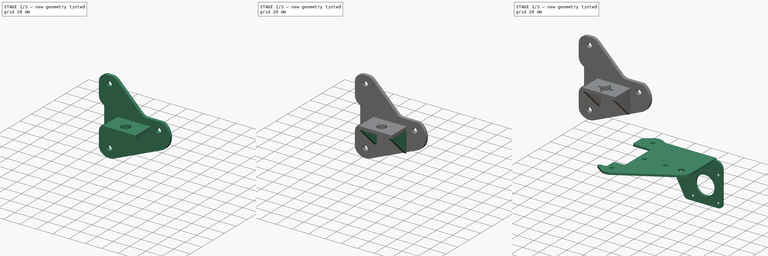
[diagram: build sequence overview — one tinted view per stage of 3, left to right]
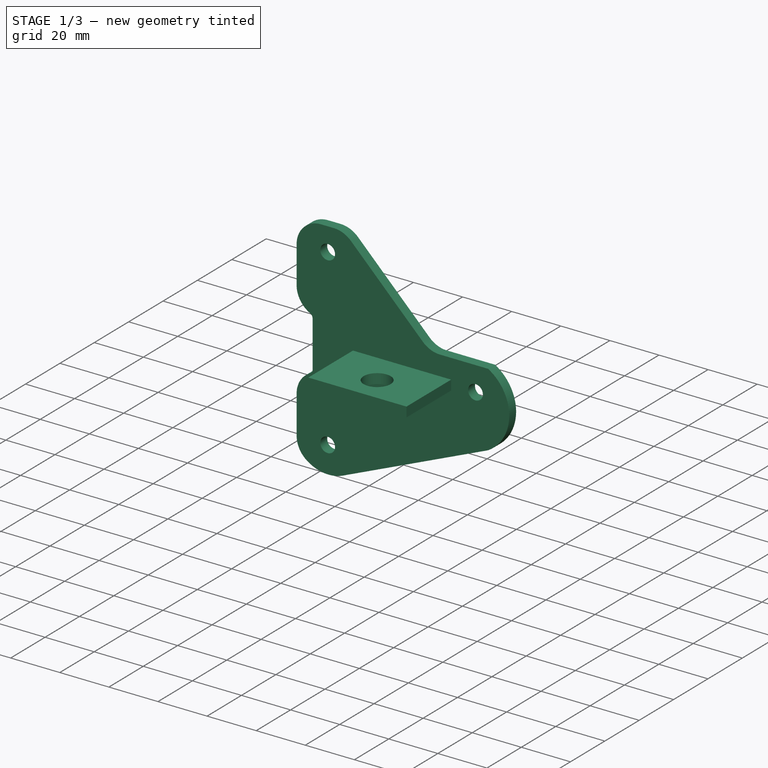
[diagram: stage 1 of 3 — iso view after this stage's code; geometry added in this stage tinted green]
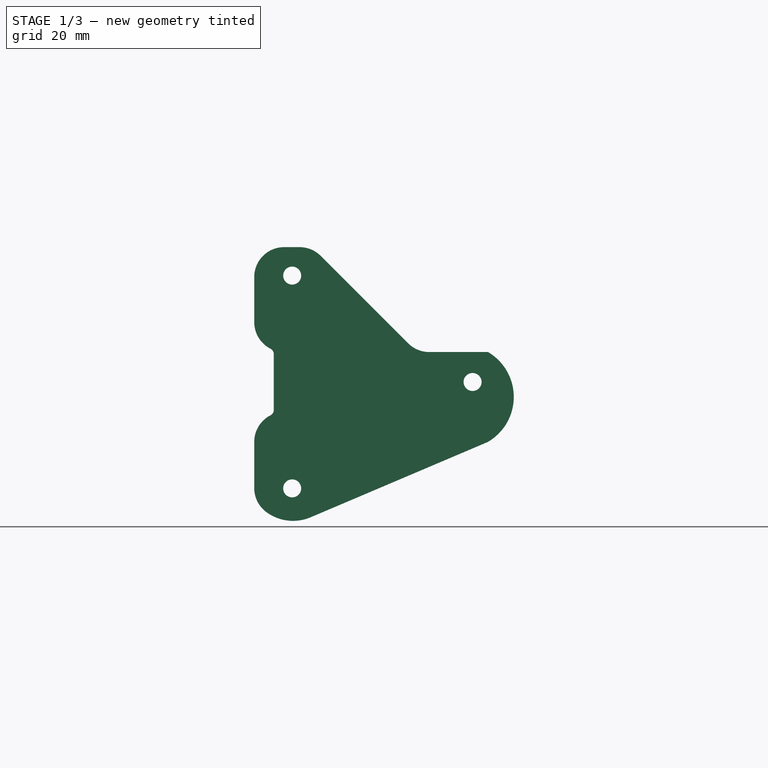
[diagram: stage 1 of 3 — front view after this stage's code; geometry added in this stage tinted green]
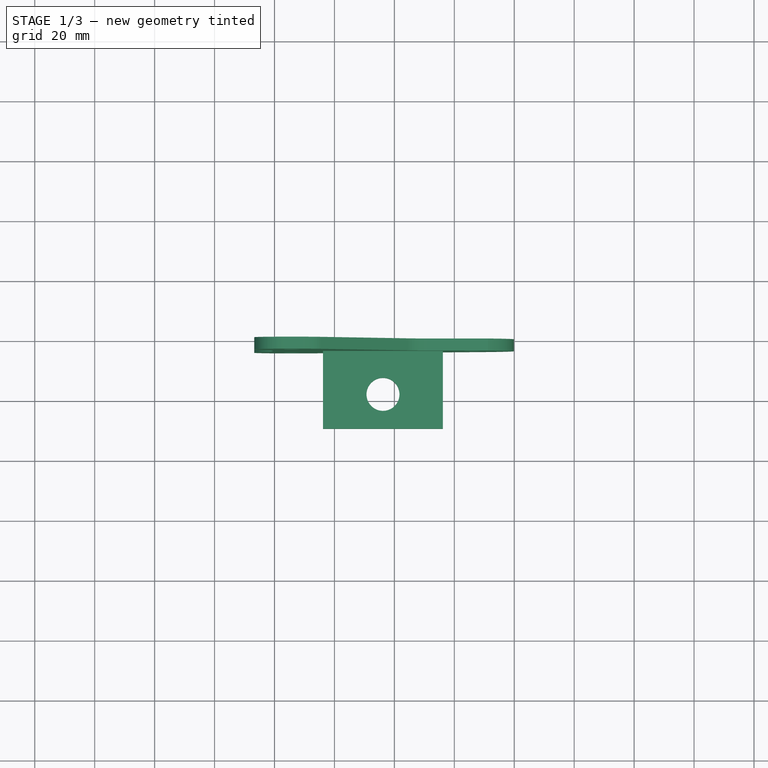
[diagram: stage 1 of 3 — top view after this stage's code; geometry added in this stage tinted green]
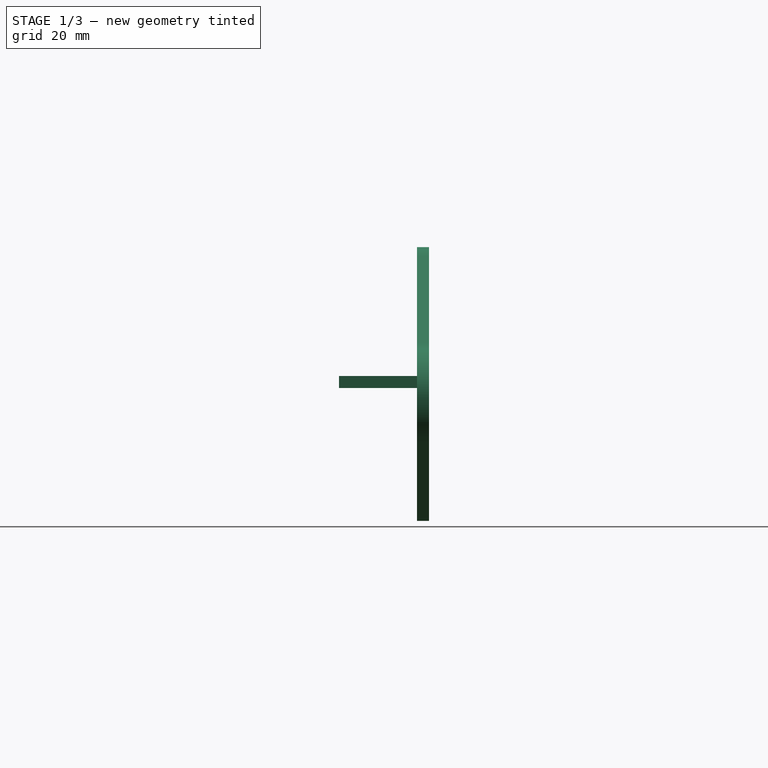
[diagram: stage 1 of 3 — right view after this stage's code; geometry added in this stage tinted green]
FCSTD DOCUMENT  (FreeCAD 0.20R25645 (Git))
Label: gantry bracket
License: Creative Commons Attribution
LicenseURL: http://creativecommons.org/licenses/by/4.0/
objects: Sketcher::SketchObject×7, PartDesign::Pad×4, PartDesign::Point×3, PartDesign::Pocket×3, Part::Feature×2, PartDesign::Body×2, PartDesign::SubShapeBinder×1, PartDesign::FeatureBase×1
note: 30 computed .brp shape members not serialized (recipe doc carries the construction recipe); baked Part::Feature solids carry a one-line shape summary decoded from their .brp

FEATURE [Part::Feature] Part__Feature  label="Z Stent"
  Placement = pos=(176,94,0) rot=(0,0,1;3.14159rad)
  shape: bbox 106.4 x 3 x 91.34 mm, 32 faces (baked)
FEATURE [PartDesign::SubShapeBinder] Binder
  BindMode = 0
  ClaimChildren = false
  Context = -> Body [Binder.]
  Fuse = false
  MakeFace = true
  PartialLoad = false
  Relative = true
  Support = -> [Part__Feature]
  _Version = 2
FEATURE [Sketcher::SketchObject] Sketch
  ExternalGeometry = -> [Binder]
  FullyConstrained = false
  MapMode = 5
  Placement = pos=(0,0,0) rot=(1,0,0;1.5708rad)
  Support = -> [XZ_Plane]
  sketch-geometry (20):
    g0: LineSegment StartX=4.57833 StartY=59.806 StartZ=0 EndX=-24.5638 EndY=88.9481 EndZ=0
    g1: LineSegment StartX=-31.6349 StartY=91.8771 StartZ=0 EndX=-36.7642 EndY=91.8771 EndZ=0
    g2: LineSegment StartX=-46.7642 StartY=81.8771 StartZ=0 EndX=-46.7642 EndY=66.8771 EndZ=0
    g3: ArcOfCircle CenterX=-36.7642 CenterY=81.8771 CenterZ=0 NormalX=0 NormalY=0 NormalZ=1 AngleXU=0 Radius=10 StartAngle=1.5708 EndAngle=3.14159
    g4: ArcOfCircle CenterX=-31.6349 CenterY=81.8771 CenterZ=0 NormalX=0 NormalY=0 NormalZ=1 AngleXU=0 Radius=10 StartAngle=0.785398 EndAngle=1.5708
    g5: ArcOfCircle CenterX=-36.7642 CenterY=66.8771 CenterZ=0 NormalX=0 NormalY=0 NormalZ=1 AngleXU=0 Radius=10 StartAngle=3.14159 EndAngle=4.23893
    g6: ArcOfCircle CenterX=-42.2358 CenterY=56.1971 CenterZ=0 NormalX=0 NormalY=0 NormalZ=1 AngleXU=0 Radius=2 StartAngle=1e-16 EndAngle=1.09734
    g7: LineSegment StartX=-40.2358 StartY=56.1971 StartZ=0 EndX=-40.2358 EndY=37.557 EndZ=0
    g8: ArcOfCircle CenterX=-42.2358 CenterY=37.557 CenterZ=0 NormalX=0 NormalY=0 NormalZ=1 AngleXU=0 Radius=2 StartAngle=5.18585 EndAngle=6.28319
    g9: ArcOfCircle CenterX=-36.7642 CenterY=26.8771 CenterZ=0 NormalX=0 NormalY=0 NormalZ=1 AngleXU=0 Radius=10 StartAngle=2.04426 EndAngle=3.14159
    g10: LineSegment StartX=-46.7642 StartY=26.8771 StartZ=0 EndX=-46.7642 EndY=11.4982 EndZ=0
    g11: ArcOfCircle CenterX=-36.7642 CenterY=11.4982 CenterZ=0 NormalX=0 NormalY=0 NormalZ=1 AngleXU=0 Radius=10 StartAngle=3.14159 EndAngle=4.09885
    g12: ArcOfCircle CenterX=-33.8134 CenterY=15.5353 CenterZ=0 NormalX=0 NormalY=0 NormalZ=1 AngleXU=0 Radius=15 StartAngle=4.09297 EndAngle=5.1143
    g13: LineSegment StartX=-27.9457 StartY=1.73058 StartZ=0 EndX=31.1589 EndY=26.853 EndZ=0
    g14: LineSegment StartX=11.6494 StartY=56.8771 StartZ=0 EndX=31.2384 EndY=56.8771 EndZ=0
    g15: ArcOfCircle CenterX=11.6494 CenterY=66.8771 CenterZ=0 NormalX=0 NormalY=0 NormalZ=1 AngleXU=0 Radius=10 StartAngle=3.92699 EndAngle=4.71239
    g16: ArcOfCircle CenterX=22.4894 CenterY=41.8881 CenterZ=0 NormalX=0 NormalY=0 NormalZ=1 AngleXU=0 Radius=17.3555 StartAngle=5.23544 EndAngle=7.32564
    g17: Circle CenterX=-34.1 CenterY=11.3771 CenterZ=0 NormalX=0 NormalY=0 NormalZ=1 AngleXU=0 Radius=3
    g18: Circle CenterX=-34.1 CenterY=82.3771 CenterZ=0 NormalX=0 NormalY=0 NormalZ=1 AngleXU=0 Radius=3
    g19: Circle CenterX=26.1 CenterY=46.8771 CenterZ=0 NormalX=0 NormalY=0 NormalZ=1 AngleXU=0 Radius=3
  constraints (44):
    c: Coincident(g0,g-14)
    c: Coincident(g0,g-15)
    c: Coincident(g1,g-17)
    c: Coincident(g1,g-18)
    c: Coincident(g2,g-18)
    c: Coincident(g2,g-19)
    c: Coincident(g3,g-18)
    c: Coincident(g3,g2)
    c: Coincident(g4,g-15)
    c: Coincident(g4,g1)
    c: Coincident(g5,g-19)
    c: Coincident(g5,g2)
    c: Coincident(g6,g-20)
    c: Coincident(g6,g5)
    c: Coincident(g6,g-20)
    c: Coincident(g7,g6)
    c: Coincident(g7,g-8)
    c: Coincident(g8,g-8)
    c: Coincident(g8,g7)
    c: Coincident(g9,g-7)
    c: Coincident(g9,g8)
    c: Coincident(g9,g-9)
    c: Coincident(g10,g9)
    c: Coincident(g10,g-10)
    c: Coincident(g11,g-10)
    c: Coincident(g11,g10)
    c: Coincident(g12,g-21)
    c: Coincident(g12,g11)
    c: Coincident(g12,g-21)
    c: Coincident(g13,g12)
    c: PointOnObject(g13,g-11)
    c: Coincident(g14,g-13)
    c: PointOnObject(g14,g-12)
    c: Coincident(g15,g-13)
    c: Coincident(g15,g0)
    c: Coincident(g15,g14)
    c: Coincident(g16,g14)
    c: Coincident(g16,g13)
    c: Coincident(g17,g-22)
    c: Coincident(g18,g-4)
    c: Coincident(g19,g-3)
    c: Equal(g19,g17)
    c: Radius(g18) = 3
    c: Equal(g17,g18)
FEATURE [PartDesign::Pad] Pad
  Direction = (0,-1,-2e-16)
  Length = 4
  Length2 = 100
  Placement = pos=(0,0,0) rot=(1,0,0;1.5708rad)
  Profile = -> Sketch
  Type = 0
FEATURE [PartDesign::Point] DatumPoint002
  AttacherType = Attacher::AttachEnginePoint
  MapMode = 37
  Placement = pos=(45.7,43.5264,-44.05) rot=(0,0,1;0rad)
  Support = -> [BaseFeature]
FEATURE [PartDesign::Point] DatumPoint
  AttacherType = Attacher::AttachEnginePoint
  MapMode = 36
  Placement = pos=(15.4,35.5,-26.9) rot=(-1,0,0;1.5708rad)
  Support = -> [BaseFeature]
FEATURE [PartDesign::Point] DatumPoint003
  AttacherType = Attacher::AttachEnginePoint
  MapMode = 36
  Placement = pos=(75.6,0,-26.9) rot=(0,0.707107,0.707107;3.14159rad)
  Support = -> [BaseFeature]
FEATURE [PartDesign::Body] Body001
  BaseFeature = -> Part__Feature001
  Group = -> [BaseFeature,DatumPoint002,DatumPoint,DatumPoint003]
  Origin = -> Origin001
  Tip = -> BaseFeature
FEATURE [Sketcher::SketchObject] Sketch001
  ExternalGeometry = -> [Pad]
  FullyConstrained = false
  MapMode = 5
  Placement = pos=(0,-4,0) rot=(1,0,0;1.5708rad)
  Support = -> [Pad]
  sketch-geometry (11):
    g0: LineSegment StartX=-3.8 StartY=82.3771 StartZ=0 EndX=-3.8 EndY=46.8771 EndZ=0
    g1: LineSegment StartX=26.1 StartY=46.8771 StartZ=0 EndX=-3.8 EndY=46.8771 EndZ=0
    g2: LineSegment StartX=-34.1 StartY=82.3771 StartZ=0 EndX=-3.8 EndY=82.3771 EndZ=0
    g3: LineSegment StartX=-23.8 StartY=48.8771 StartZ=0 EndX=16.2 EndY=48.8771 EndZ=0
    g4: LineSegment StartX=16.2 StartY=48.8771 StartZ=0 EndX=16.2 EndY=44.8771 EndZ=0
    g5: LineSegment StartX=16.2 StartY=44.8771 StartZ=0 EndX=-23.8 EndY=44.8771 EndZ=0
    g6: LineSegment StartX=-23.8 StartY=44.8771 StartZ=0 EndX=-23.8 EndY=48.8771 EndZ=0
    g7: LineSegment StartX=-3.8 StartY=48.1132 StartZ=0 EndX=-23.8 EndY=48.1132 EndZ=0
    g8: LineSegment StartX=-3.8 StartY=48.1132 StartZ=0 EndX=16.2 EndY=48.1132 EndZ=0
    g9: LineSegment StartX=3.18347 StartY=46.8771 StartZ=0 EndX=3.18347 EndY=48.8771 EndZ=0
    g10: LineSegment StartX=3.18347 StartY=46.8771 StartZ=0 EndX=3.18347 EndY=44.8771 EndZ=0
  constraints (32):
    c: Vertical(g0)
    c: Coincident(g1,g-3)
    c: Horizontal(g1)
    c: Coincident(g2,g-4)
    c: Horizontal(g2)
    c: Coincident(g0,g2)
    c: Coincident(g0,g1)
    c: Distance(g2) = 30.3
    c: Coincident(g3,g4)
    c: Coincident(g4,g5)
    c: Coincident(g5,g6)
    c: Coincident(g6,g3)
    c: Horizontal(g3)
    c: Horizontal(g5)
    c: Vertical(g4)
    c: Vertical(g6)
    c: Distance(g4) = 4
    c: PointOnObject(g7,g0)
    c: PointOnObject(g7,g6)
    c: Horizontal(g7)
    c: Coincident(g8,g7)
    c: PointOnObject(g8,g4)
    c: Horizontal(g8)
    c: Equal(g8,g7)
    c: Distance(g7) = 20
    c: PointOnObject(g9,g1)
    c: PointOnObject(g9,g3)
    c: Vertical(g9)
    c: Coincident(g10,g9)
    c: PointOnObject(g10,g5)
    c: Vertical(g10)
    c: Equal(g10,g9)
FEATURE [PartDesign::Pad] Pad001
  BaseFeature = -> Pad
  Direction = (0,-1,2e-16)
  Length = 26
  Length2 = 100
  Placement = pos=(0,0,0) rot=(1,0,0;1.5708rad)
  Profile = -> Sketch001
  Type = 0
FEATURE [Sketcher::SketchObject] Sketch002
  ExternalGeometry = -> [Pad001]
  FullyConstrained = true
  MapMode = 5
  Placement = pos=(0,1.63e-14,48.8771) rot=(0,0,1;3.14159rad)
  Support = -> [Pad001]
  sketch-geometry (7):
    g0: Circle CenterX=3.8 CenterY=18.5 CenterZ=0 NormalX=0 NormalY=0 NormalZ=1 AngleXU=0 Radius=5.5
    g1: LineSegment StartX=3.8 StartY=18.5 StartZ=0 EndX=23.8 EndY=18.5 EndZ=0
    g2: LineSegment StartX=3.8 StartY=18.5 StartZ=0 EndX=-16.2 EndY=18.5 EndZ=0
    g3: Circle CenterX=3.8 CenterY=18.5 CenterZ=0 NormalX=0 NormalY=0 NormalZ=1 AngleXU=0 Radius=5
    g4: LineSegment StartX=3.8 StartY=13.5 StartZ=0 EndX=3.8 EndY=4 EndZ=0
    g5: LineSegment StartX=3.8 StartY=4 StartZ=0 EndX=-16.2 EndY=4 EndZ=0
    g6: LineSegment StartX=3.8 StartY=4 StartZ=0 EndX=23.8 EndY=4 EndZ=0
  constraints (19):
    c: Radius(g0) = 5.5
    c: Coincident(g1,g0)
    c: PointOnObject(g1,g-4)
    c: Horizontal(g1)
    c: Coincident(g2,g0)
    c: PointOnObject(g2,g-5)
    c: Horizontal(g2)
    c: Equal(g2,g1)
    c: Radius(g3) = 5
    c: PointOnObject(g4,g3)
    c: Vertical(g4)
    c: PointOnObject(g4,g-6)
    c: Distance(g4) = 9.5
    c: Coincident(g0,g3)
    c: Coincident(g5,g4)
    c: Coincident(g5,g-6)
    c: Coincident(g6,g4)
    c: Coincident(g6,g-6)
    c: Equal(g5,g6)
FEATURE [PartDesign::Pocket] Pocket
  BaseFeature = -> Pad001
  Length = 5
  Length2 = 100
  Placement = pos=(0,0,0) rot=(1,0,0;1.5708rad)
  Profile = -> Sketch002
  Type = 0
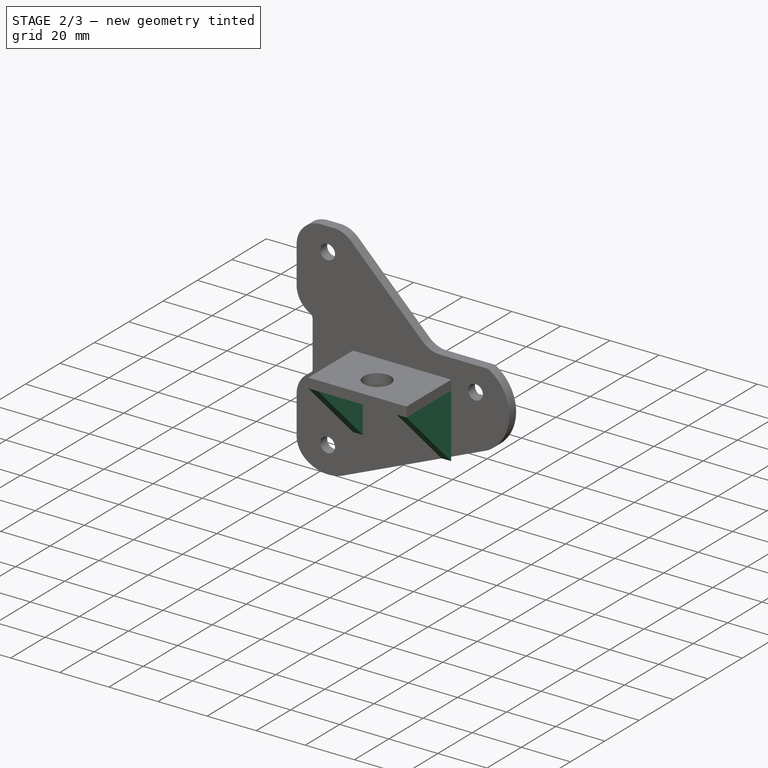
[diagram: stage 2 of 3 — iso view after this stage's code; geometry added in this stage tinted green]
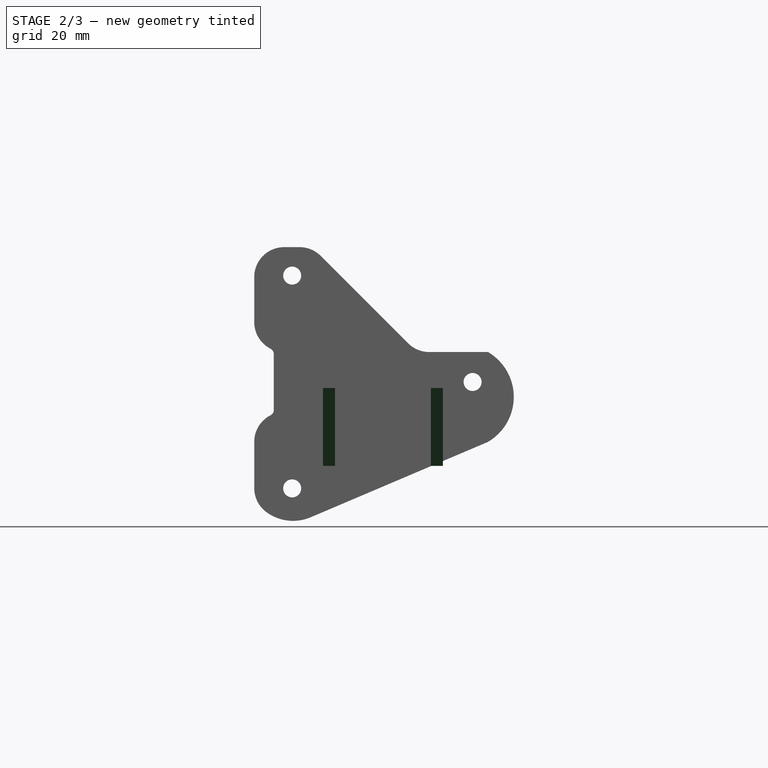
[diagram: stage 2 of 3 — front view after this stage's code; geometry added in this stage tinted green]
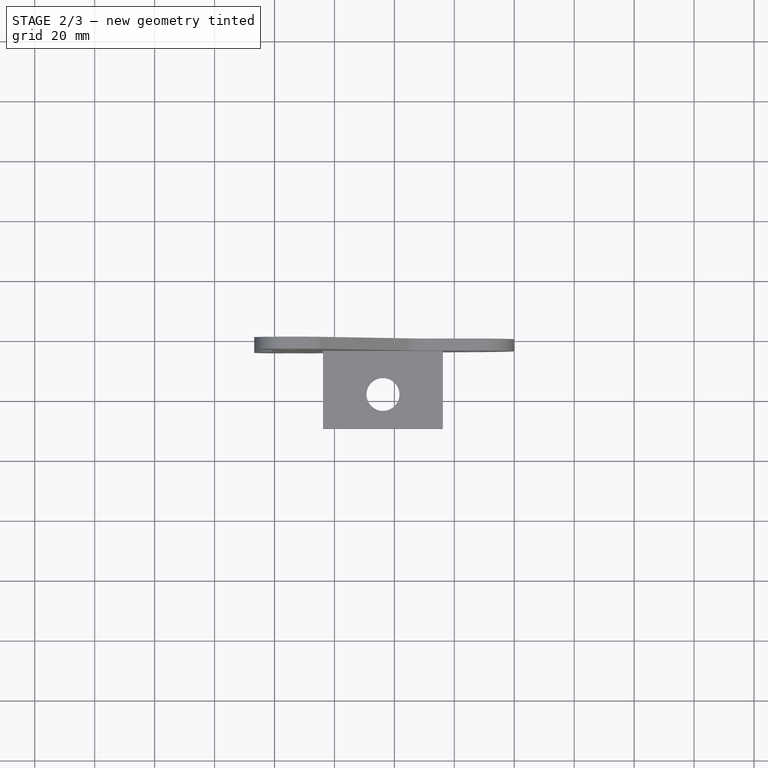
[diagram: stage 2 of 3 — top view after this stage's code; geometry added in this stage tinted green]
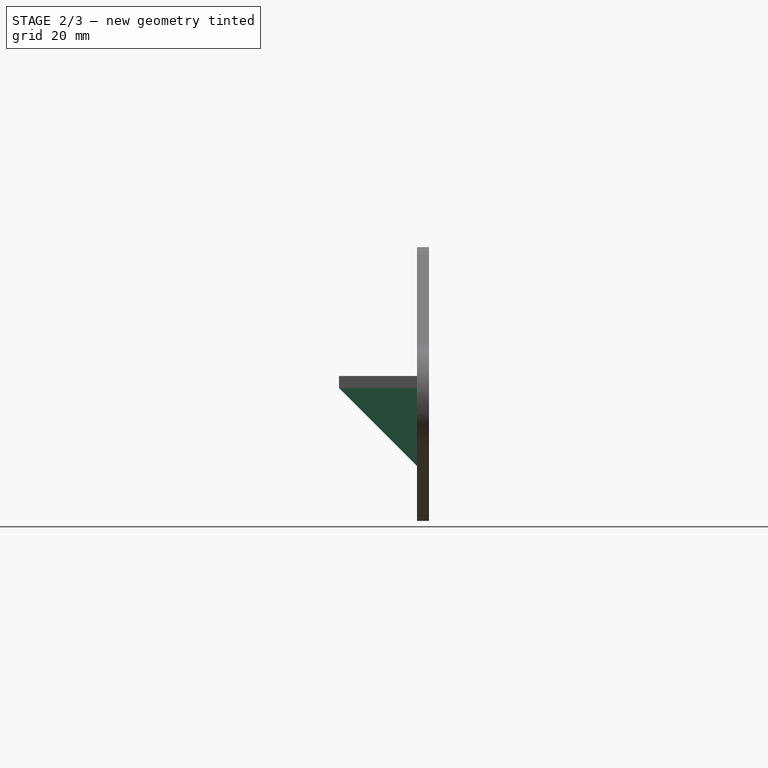
[diagram: stage 2 of 3 — right view after this stage's code; geometry added in this stage tinted green]
FEATURE [Sketcher::SketchObject] Sketch003
  ExternalGeometry = -> [Pocket]
  FullyConstrained = true
  MapMode = 5
  Placement = pos=(-23.8,0,0) rot=(0.707107,0,-0.707107;3.14159rad)
  Support = -> [Pocket]
  sketch-geometry (3):
    g0: LineSegment StartX=-44.8771 StartY=4 StartZ=0 EndX=-44.8771 EndY=30 EndZ=0
    g1: LineSegment StartX=-44.8771 StartY=30 StartZ=0 EndX=-18.8771 EndY=4 EndZ=0
    g2: LineSegment StartX=-18.8771 StartY=4 StartZ=0 EndX=-44.8771 EndY=4 EndZ=0
  constraints (7):
    c: Coincident(g0,g-3)
    c: Coincident(g0,g-3)
    c: Coincident(g1,g0)
    c: PointOnObject(g1,g-6)
    c: Coincident(g2,g0)
    c: Angle(g1,g2) = 0.785398
    c: Coincident(g2,g1)
FEATURE [PartDesign::Pad] Pad002
  BaseFeature = -> Pocket
  Direction = (-1,0,-2e-16)
  Length = 4
  Length2 = 100
  Placement = pos=(0,0,0) rot=(1,0,0;1.5708rad)
  Profile = -> Sketch003
  Reversed = true
  Type = 0
FEATURE [Sketcher::SketchObject] Sketch004
  ExternalGeometry = -> [Pad002]
  FullyConstrained = true
  MapMode = 5
  Placement = pos=(16.2,0,0) rot=(0.707107,0,0.707107;3.14159rad)
  Support = -> [Pad002]
  sketch-geometry (3):
    g0: LineSegment StartX=44.8771 StartY=4 StartZ=0 EndX=18.8771 EndY=4 EndZ=0
    g1: LineSegment StartX=18.8771 StartY=4 StartZ=0 EndX=44.8771 EndY=30 EndZ=0
    g2: LineSegment StartX=44.8771 StartY=30 StartZ=0 EndX=44.8771 EndY=4 EndZ=0
  constraints (6):
    c: Coincident(g0,g-4)
    c: Coincident(g0,g-3)
    c: Coincident(g1,g0)
    c: Coincident(g1,g-4)
    c: Coincident(g2,g1)
    c: Coincident(g2,g0)
FEATURE [PartDesign::Pad] Pad003
  BaseFeature = -> Pad002
  Direction = (1,0,-2e-16)
  Length = 4
  Length2 = 100
  Placement = pos=(0,0,0) rot=(1,0,0;1.5708rad)
  Profile = -> Sketch004
  Reversed = true
  Type = 0
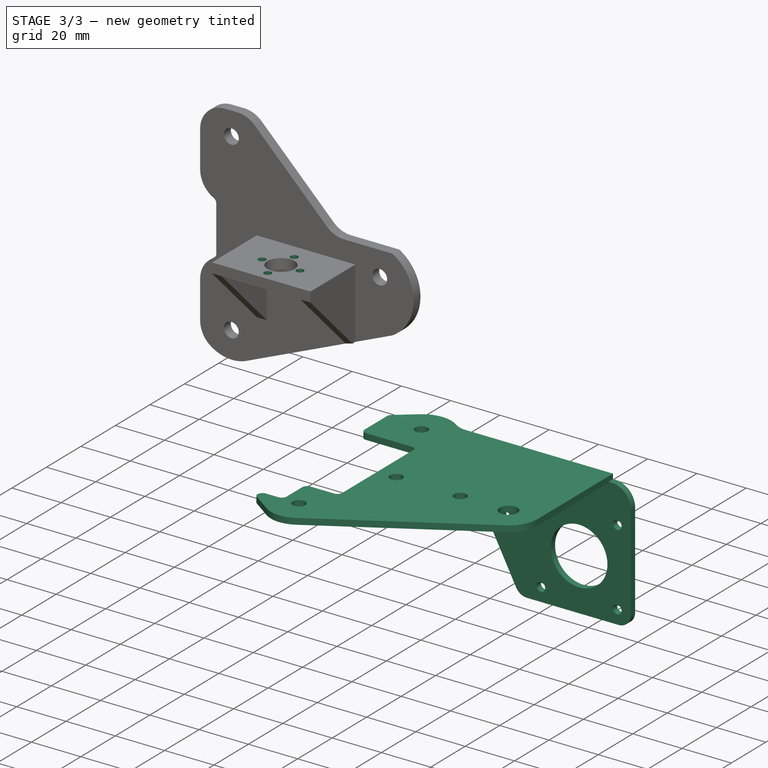
[diagram: stage 3 of 3 — iso view after this stage's code; geometry added in this stage tinted green]
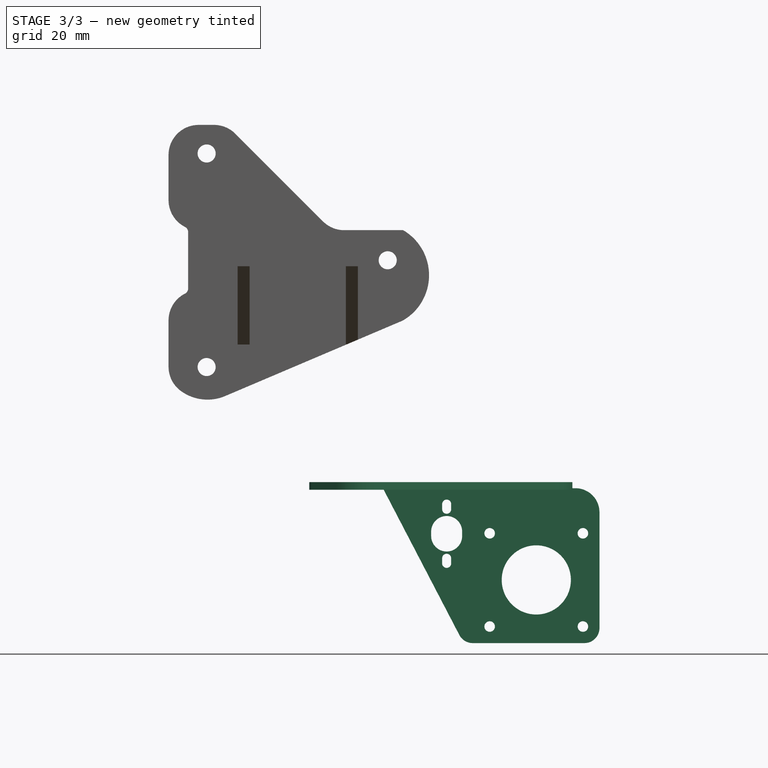
[diagram: stage 3 of 3 — front view after this stage's code; geometry added in this stage tinted green]
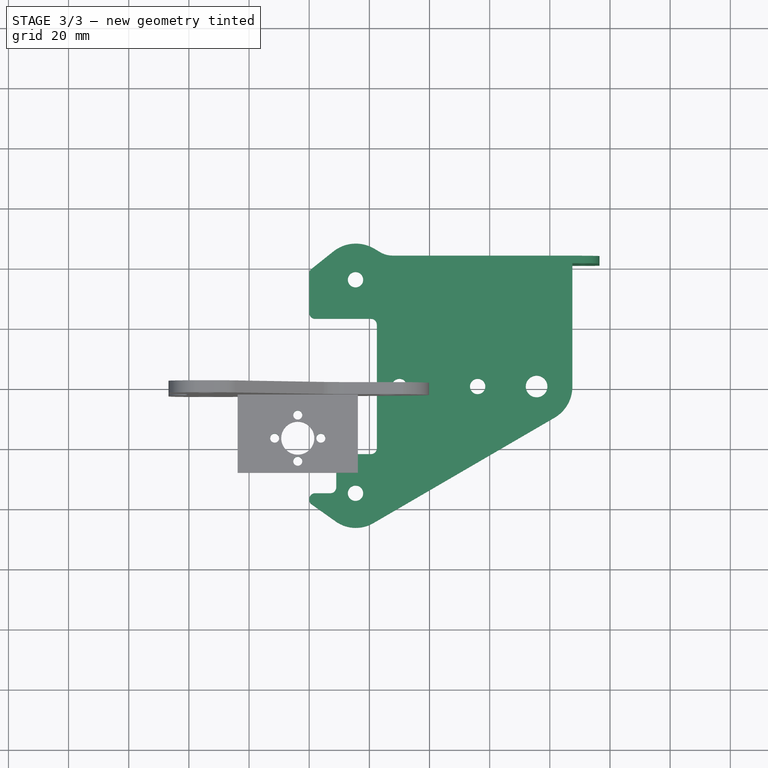
[diagram: stage 3 of 3 — top view after this stage's code; geometry added in this stage tinted green]
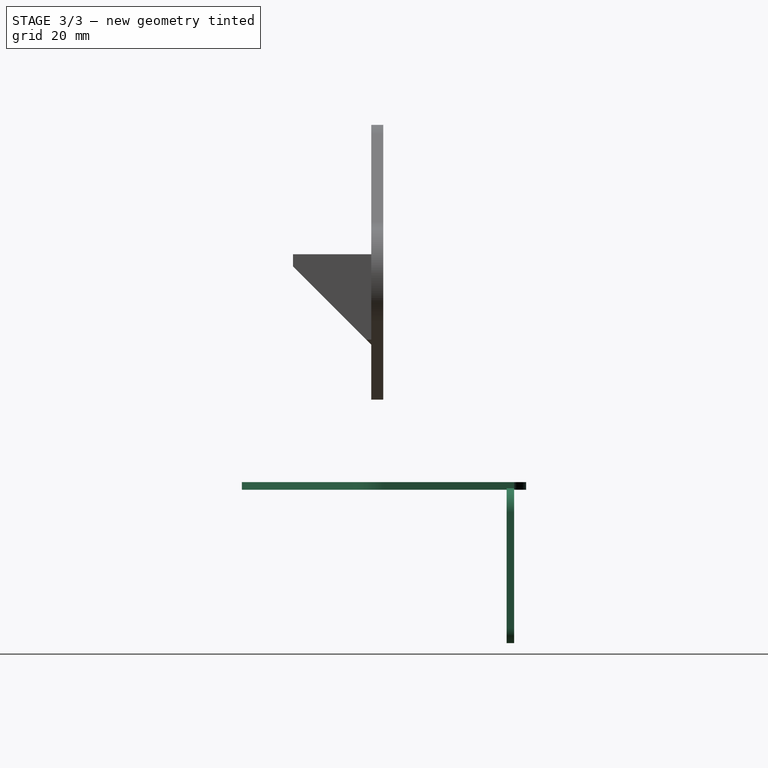
[diagram: stage 3 of 3 — right view after this stage's code; geometry added in this stage tinted green]
FEATURE [Part::Feature] Part__Feature001  label="E motor bracket"
  shape: bbox 96.5 x 94.5 x 53.5 mm, 70 faces (baked)
FEATURE [PartDesign::FeatureBase] BaseFeature
  BaseFeature = -> Part__Feature001
FEATURE [Sketcher::SketchObject] Sketch005
  ExternalGeometry = -> [Pad003]
  FullyConstrained = true
  MapMode = 5
  Placement = pos=(0,-4,9e-15) rot=(-1,0,0;1.5708rad)
  Support = -> [Pad003]
  sketch-geometry (3):
    g0: LineSegment StartX=12.3942 StartY=-18.8771 StartZ=0 EndX=16.2 EndY=-20.4947 EndZ=0
    g1: LineSegment StartX=16.2 StartY=-18.8771 StartZ=0 EndX=16.2 EndY=-20.4947 EndZ=0
    g2: LineSegment StartX=16.2 StartY=-18.8771 StartZ=0 EndX=12.3942 EndY=-18.8771 EndZ=0
  constraints (6):
    c: Coincident(g0,g-4)
    c: Coincident(g0,g-5)
    c: Coincident(g1,g-5)
    c: Coincident(g1,g0)
    c: Coincident(g2,g1)
    c: Coincident(g2,g0)
FEATURE [PartDesign::Pocket] Pocket001
  BaseFeature = -> Pad003
  Length = 5
  Length2 = 100
  Placement = pos=(0,0,0) rot=(1,0,0;1.5708rad)
  Profile = -> Sketch005
  Type = 1
FEATURE [Sketcher::SketchObject] Sketch006
  ExternalGeometry = -> [Pocket001]
  FullyConstrained = true
  MapMode = 5
  Placement = pos=(0,3.8e-14,48.8771) rot=(0,0,1;3.14159rad)
  Support = -> [Pocket001]
  sketch-geometry (12):
    g0: Circle CenterX=3.8 CenterY=26.175 CenterZ=0 NormalX=0 NormalY=0 NormalZ=1 AngleXU=0 Radius=1.5
    g1: Circle CenterX=3.8 CenterY=10.825 CenterZ=0 NormalX=0 NormalY=0 NormalZ=1 AngleXU=0 Radius=1.5
    g2: Circle CenterX=11.475 CenterY=18.5 CenterZ=0 NormalX=0 NormalY=0 NormalZ=1 AngleXU=0 Radius=1.5
    g3: Circle CenterX=-3.875 CenterY=18.5 CenterZ=0 NormalX=0 NormalY=0 NormalZ=1 AngleXU=0 Radius=1.5
    g4: LineSegment StartX=3.8 StartY=26.175 StartZ=0 EndX=3.8 EndY=24.675 EndZ=0
    g5: LineSegment StartX=11.475 StartY=18.5 StartZ=0 EndX=9.975 EndY=18.5 EndZ=0
    g6: LineSegment StartX=-3.875 StartY=18.5 StartZ=0 EndX=-2.375 EndY=18.5 EndZ=0
    g7: LineSegment StartX=3.8 StartY=10.825 StartZ=0 EndX=3.8 EndY=12.325 EndZ=0
    g8: LineSegment StartX=3.8 StartY=18.5 StartZ=0 EndX=3.8 EndY=24.675 EndZ=0
    g9: LineSegment StartX=3.8 StartY=18.5 StartZ=0 EndX=9.975 EndY=18.5 EndZ=0
    g10: LineSegment StartX=3.8 StartY=18.5 StartZ=0 EndX=3.8 EndY=12.325 EndZ=0
    g11: LineSegment StartX=3.8 StartY=18.5 StartZ=0 EndX=-2.375 EndY=18.5 EndZ=0
  constraints (32):
    c: Radius(g3) = 1.5
    c: Equal(g3,g0)
    c: Equal(g0,g2)
    c: Equal(g2,g1)
    c: PointOnObject(g6,g3)
    c: PointOnObject(g5,g2)
    c: PointOnObject(g4,g0)
    c: PointOnObject(g7,g1)
    c: Coincident(g4,g0)
    c: Coincident(g5,g2)
    c: Coincident(g6,g3)
    c: Coincident(g7,g1)
    c: Vertical(g7)
    c: Horizontal(g5)
    c: Horizontal(g6)
    c: Vertical(g4)
    c: Coincident(g8,g-3)
    c: Coincident(g8,g4)
    c: Vertical(g8)
    c: Coincident(g9,g8)
    c: Coincident(g9,g5)
    c: Horizontal(g9)
    c: Coincident(g10,g8)
    c: Coincident(g10,g7)
    c: Vertical(g10)
    c: Coincident(g11,g8)
    c: Coincident(g11,g6)
    c: Horizontal(g11)
    c: Equal(g9,g10)
    c: Equal(g10,g11)
    c: Equal(g11,g8)
    c: Distance(g11) = 6.175
FEATURE [PartDesign::Pocket] Pocket002
  BaseFeature = -> Pocket001
  Length = 5
  Length2 = 100
  Placement = pos=(0,0,0) rot=(1,0,0;1.5708rad)
  Profile = -> Sketch006
  Type = 1
FEATURE [PartDesign::Body] Body  label="Gantry bracket"
  AttacherType = Attacher::AttachEngine3D
  Group = -> [Binder,Sketch,Pad,Sketch001,Pad001,Sketch002,Pocket,Sketch003,Pad002,Sketch004,Pad003,Sketch005,Pocket001,Sketch006,Pocket002]
  Origin = -> Origin
  Tip = -> Pocket002
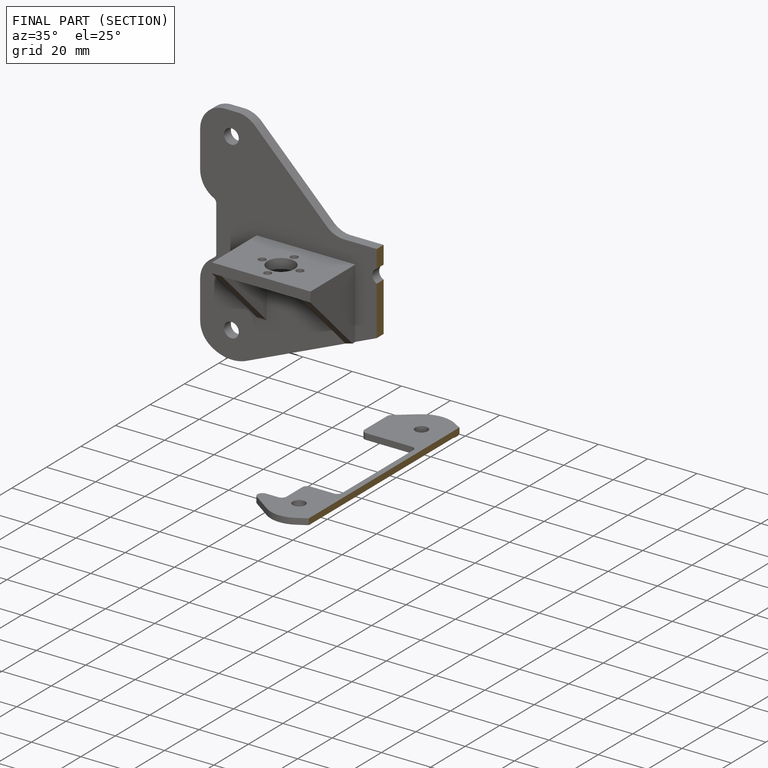
[diagram: finished part — half-section view (interior)]
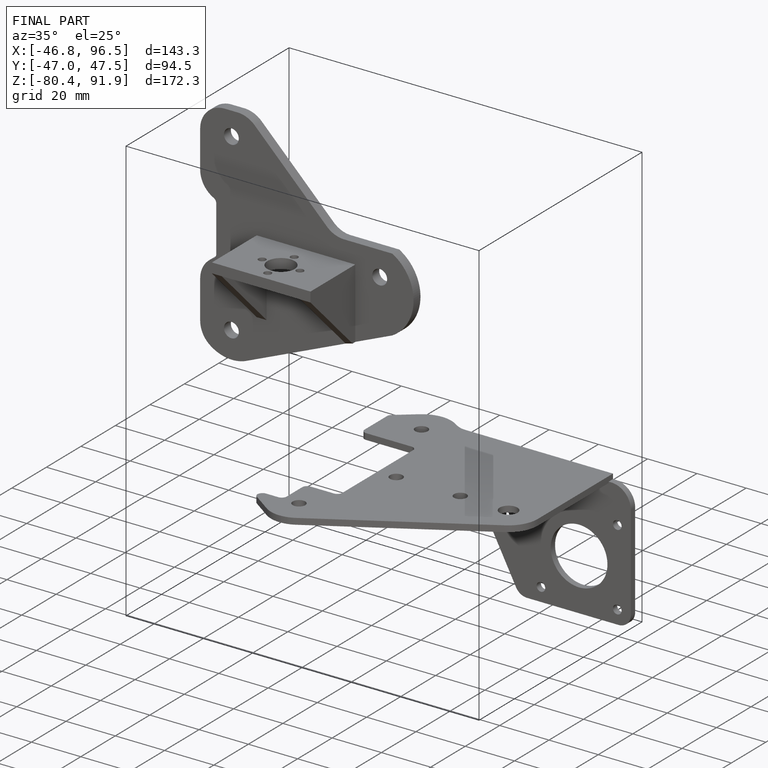
[diagram: finished part — iso view with bounding-box wireframe]
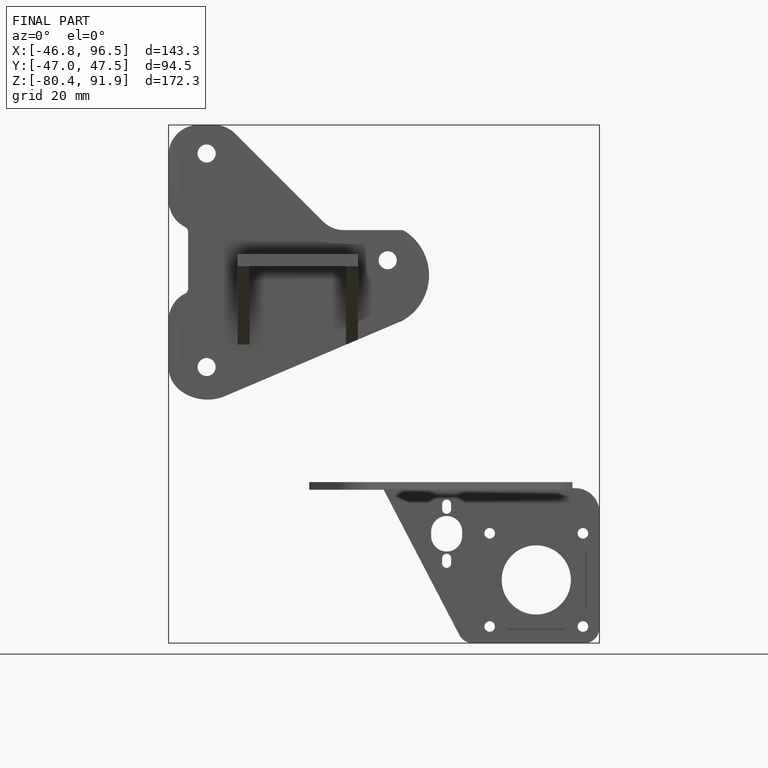
[diagram: finished part — front view with bounding-box wireframe]
